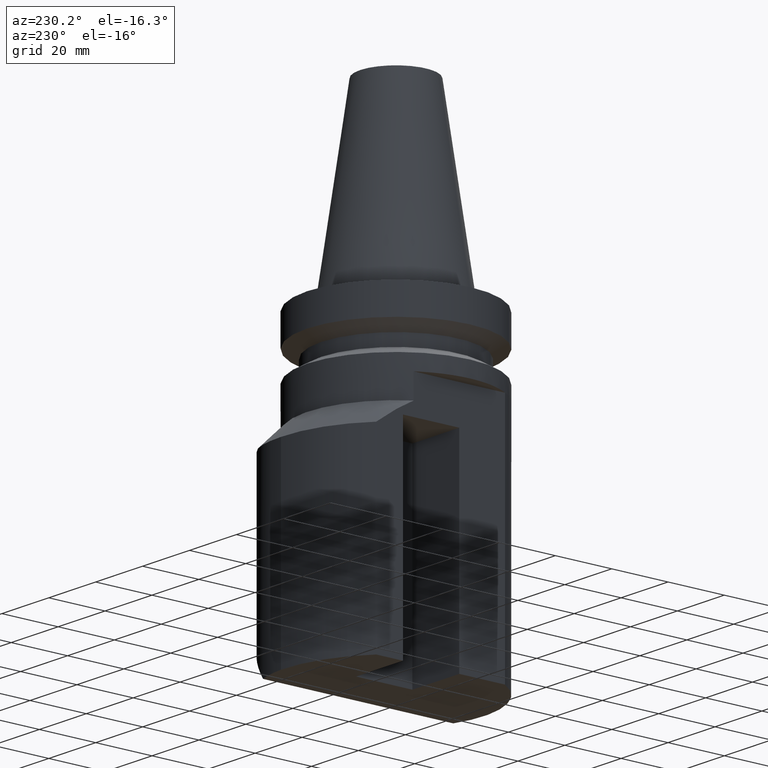
[diagram: clean part render]
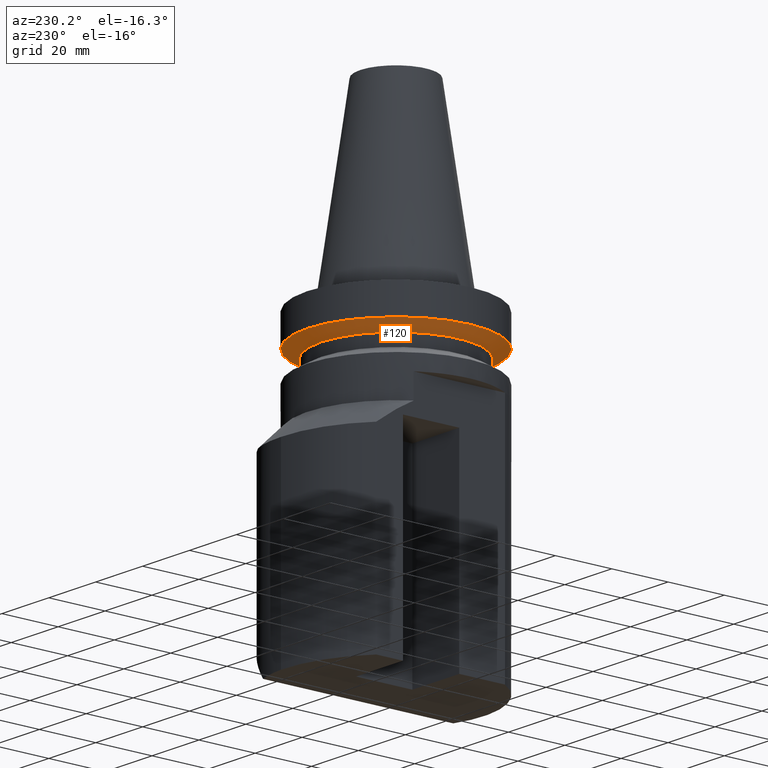
[diagram: same view with one face highlighted and labeled with its STEP entity id]
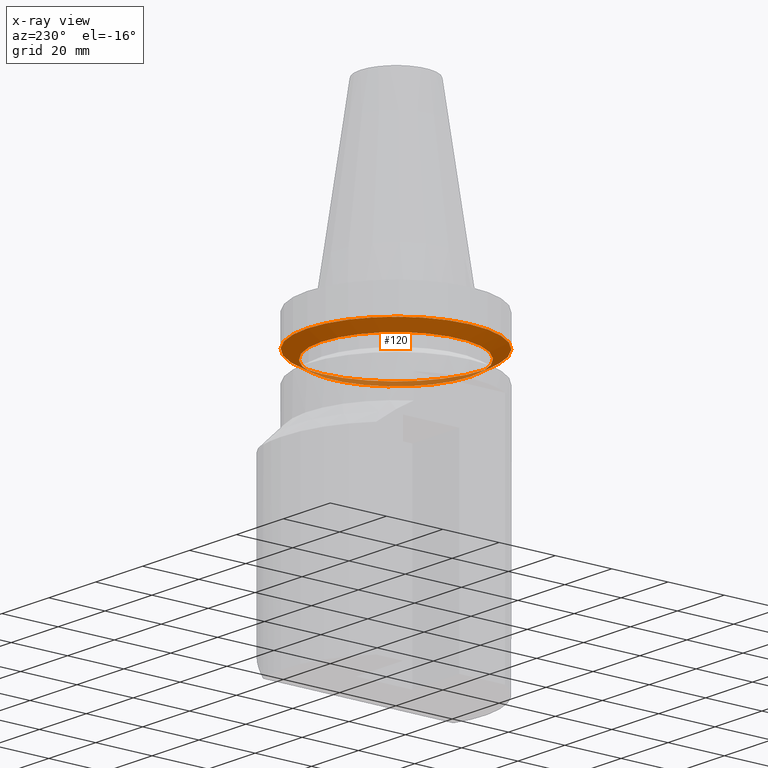
[diagram: x-ray of the same camera — body ghosted, the highlighted face saturated]
A machine part, auxiliary view. The second image highlights one B-rep face of the part: STEP entity #120.
The next image is the same camera in x-ray: the body ghosted, the highlighted face saturated — about 15% of this face is hidden behind the body in this view.
In plain terms, the highlighted conical surface has half-angle 60 deg.
Its self-contained STEP definition (entity closure, byte-faithful):
#120=ADVANCED_FACE('Unnamed[1]',(#308,#309),#310,.T.);
#148=EDGE_CURVE('Unnamed[1]',#352,#352,#353,.T.);
#191=EDGE_CURVE('Unnamed[1]',#413,#413,#414,.T.);
#308=FACE_BOUND('',#547,.T.);
#309=FACE_BOUND('',#548,.T.);
#310=CONICAL_SURFACE('',#549,29.0000000000001,1.0471975511966);
#352=VERTEX_POINT('',#646);
#353=CIRCLE('',#647,31.5000000000001);
#413=VERTEX_POINT('',#728);
#414=CIRCLE('',#729,26.5000000000001);
#547=EDGE_LOOP('',(#889));
#548=EDGE_LOOP('',(#890));
#549=AXIS2_PLACEMENT_3D('',#891,#892,#893);
#646=CARTESIAN_POINT('',(-4.56793256081964E-015,-31.5000000000001,-11.5999999999999));
#647=AXIS2_PLACEMENT_3D('',#932,#933,#934);
#728=CARTESIAN_POINT('',(-4.13237170103344E-015,-26.5000000000001,-14.486751345948));
#729=AXIS2_PLACEMENT_3D('',#1016,#1017,#1018);
#889=ORIENTED_EDGE('',*,*,#191,.F.);
#890=ORIENTED_EDGE('',*,*,#148,.T.);
#891=CARTESIAN_POINT('',(-7.98676413399201E-016,-4.56340792182818E-015,-13.043375672974));
#892=DIRECTION('',(6.12323399573676E-017,-1.97960454588128E-016,1.0));
#893=DIRECTION('',(-1.22464679914735E-016,-1.0,-1.97960454588128E-016));
#932=CARTESIAN_POINT('',(-7.10295143505457E-016,-4.84913922619157E-015,-11.5999999999999));
#933=DIRECTION('',(-6.12323399573676E-017,1.97960454588128E-016,-1.0));
#934=DIRECTION('',(-1.22464679914735E-016,-1.0,-1.97960454588128E-016));
#1016=CARTESIAN_POINT('',(-8.87057683292944E-016,-4.27767661746479E-015,-14.486751345948));
#1017=DIRECTION('',(-6.12323399573676E-017,1.97960454588128E-016,-1.0));
#1018=DIRECTION('',(-1.22464679914735E-016,-1.0,-1.97960454588128E-016));